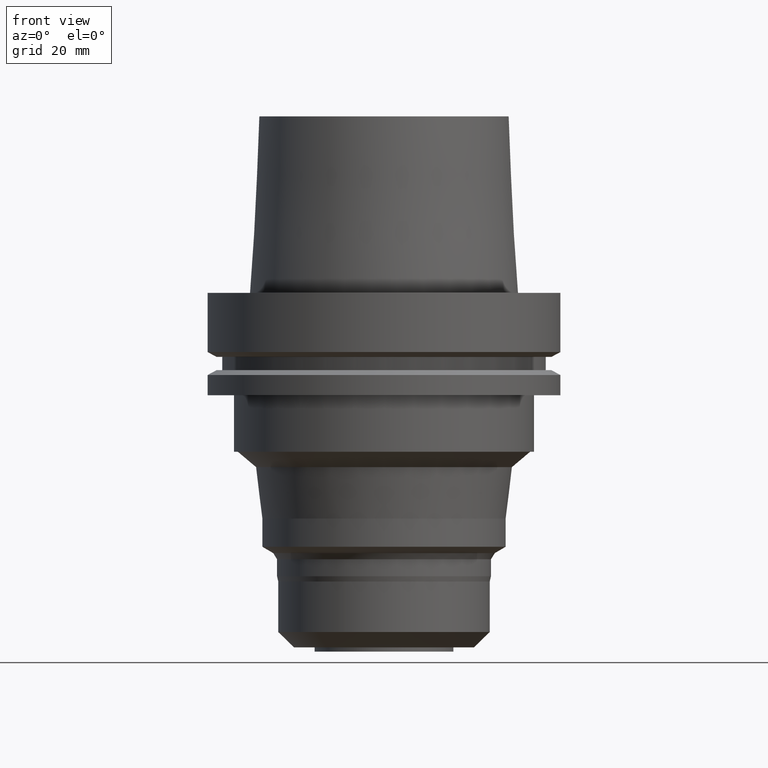
[diagram: clean part render]
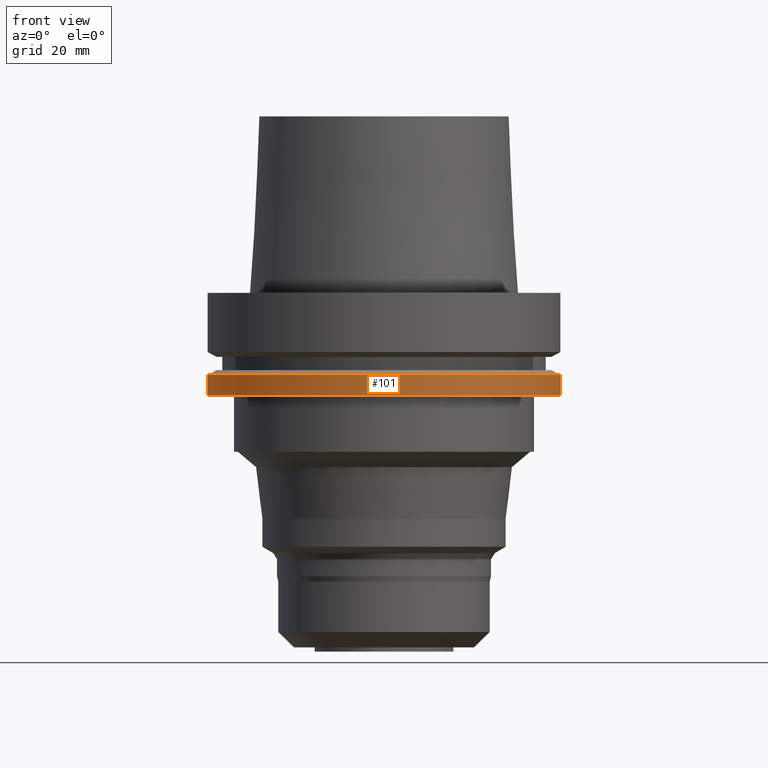
[diagram: same view with one face highlighted and labeled with its STEP entity id]
A machine part, front view. The second image highlights one B-rep face of the part: STEP entity #101.
In plain terms, the highlighted cylindrical surface (bore or boss wall) has radius 50 mm, axis along (0, 0, -1).
Its self-contained STEP definition (entity closure, byte-faithful):
#101=ADVANCED_FACE('Unnamed[1]',(#259,#260),#261,.T.);
#157=EDGE_CURVE('Unnamed[1]',#349,#349,#350,.T.);
#159=EDGE_CURVE('Unnamed[1]',#352,#352,#353,.T.);
#259=FACE_BOUND('',#474,.T.);
#260=FACE_BOUND('',#475,.T.);
#261=CYLINDRICAL_SURFACE('',#476,50.0000000000001);
#349=VERTEX_POINT('',#586);
#350=CIRCLE('',#587,50.0000000000001);
#352=VERTEX_POINT('',#590);
#353=CIRCLE('',#591,50.0000000000001);
#474=EDGE_LOOP('',(#716));
#475=EDGE_LOOP('',(#717));
#476=AXIS2_PLACEMENT_3D('',#718,#719,#720);
#586=CARTESIAN_POINT('',(1.77573785876361E-015,50.0,-28.9999999999991));
#587=AXIS2_PLACEMENT_3D('',#819,#820,#821);
#590=CARTESIAN_POINT('',(1.42350465640822E-015,50.0,-23.2475952641907));
#591=AXIS2_PLACEMENT_3D('',#822,#823,#824);
#716=ORIENTED_EDGE('',*,*,#157,.F.);
#717=ORIENTED_EDGE('',*,*,#159,.T.);
#718=CARTESIAN_POINT('',(1.59962125758591E-015,-3.25692130253636E-014,-26.1237976320949));
#719=DIRECTION('',(6.12323399573677E-017,5.75940563219809E-016,-1.0));
#720=DIRECTION('',(-4.00933410930822E-032,1.0,5.75940563219809E-016));
#819=CARTESIAN_POINT('',(1.77573785876361E-015,-3.09126914136588E-014,-28.9999999999991));
#820=DIRECTION('',(6.12323399573677E-017,5.75940563219809E-016,-1.0));
#821=DIRECTION('',(-4.00933410930822E-032,1.0,5.75940563219809E-016));
#822=CARTESIAN_POINT('',(1.42350465640822E-015,-3.42257346370685E-014,-23.2475952641908));
#823=DIRECTION('',(6.12323399573677E-017,5.75940563219809E-016,-1.0));
#824=DIRECTION('',(-4.00933410930822E-032,1.0,5.75940563219809E-016));